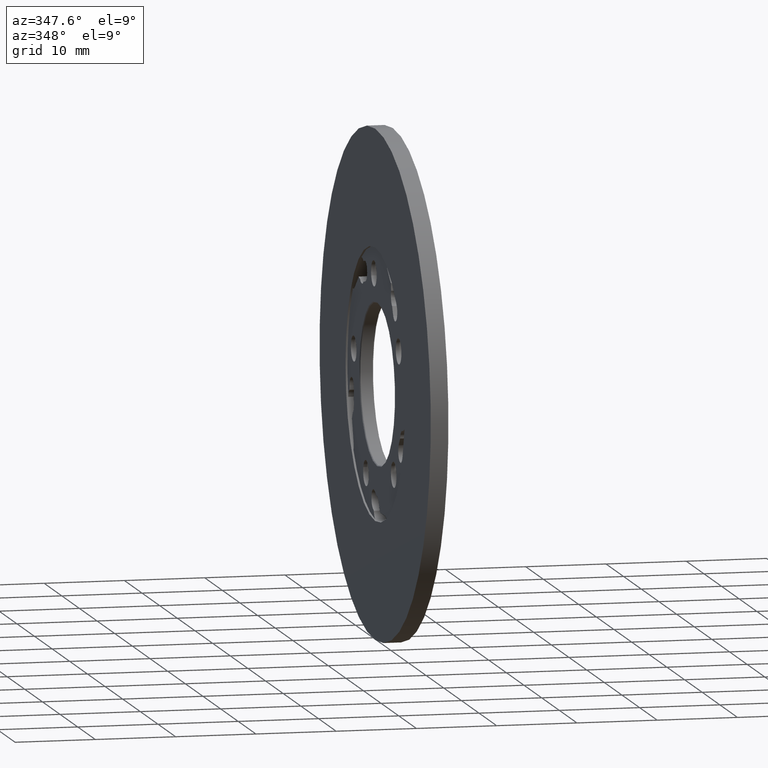
[diagram: clean part render]
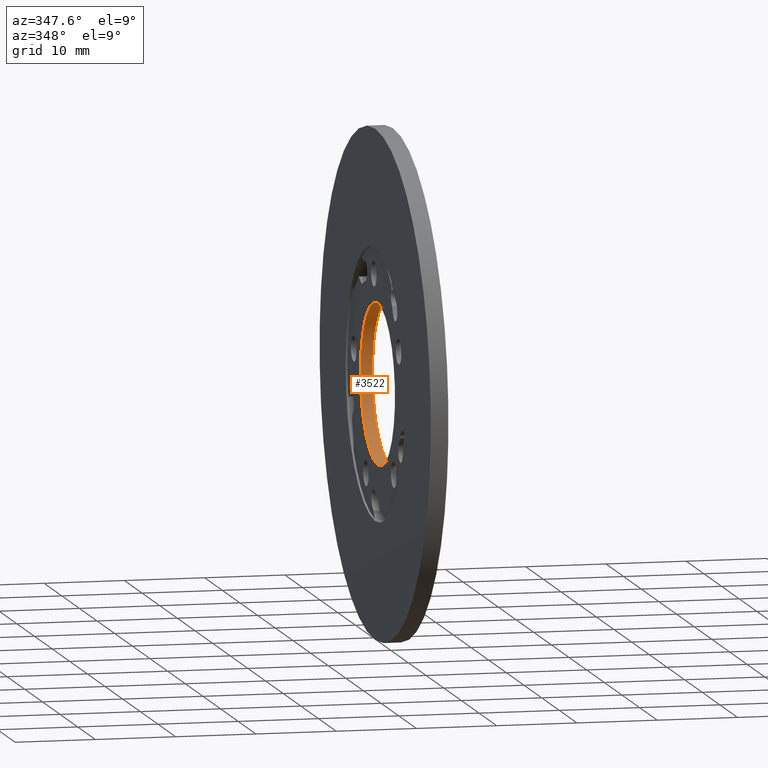
[diagram: same view with one face highlighted and labeled with its STEP entity id]
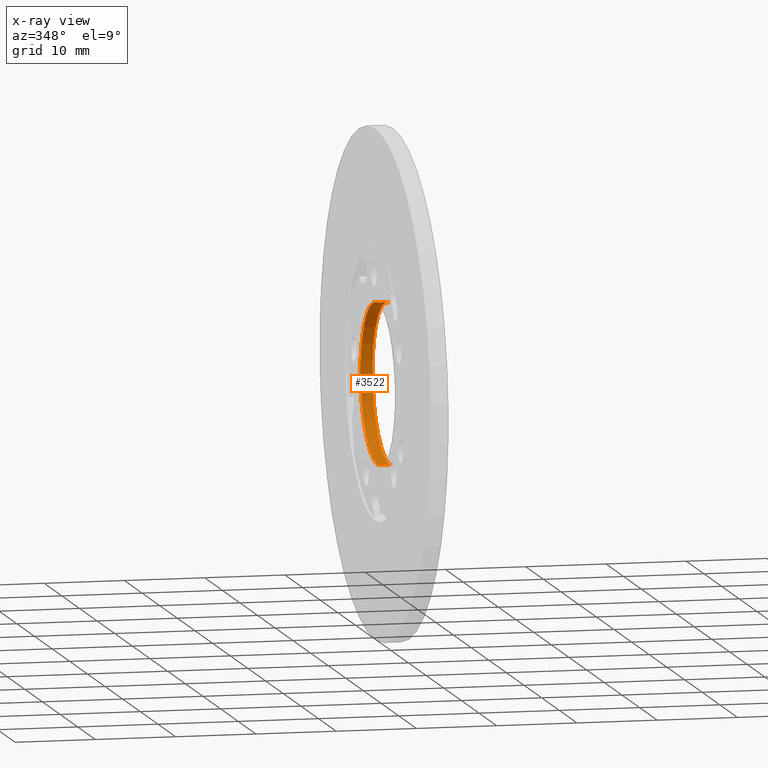
[diagram: x-ray of the same camera — body ghosted, the highlighted face saturated]
A machine part, auxiliary view. The second image highlights one B-rep face of the part: STEP entity #3522.
The next image is the same camera in x-ray: the body ghosted, the highlighted face saturated — about 0% of this face is hidden behind the body in this view.
In plain terms, the highlighted cylindrical surface (partial cylindrical patch) has radius 10 mm, axis along (1, -0, -0).
Its self-contained STEP definition (entity closure, byte-faithful):
#334 = ORIENTED_EDGE ( 'NONE', *, *, #3083, .T. ) ;
#378 = CARTESIAN_POINT ( 'NONE',  ( -1.600000000000021627, 1.224646799147353256E-15, 10.00000000000000000 ) ) ;
#525 = VERTEX_POINT ( 'NONE', #1706 ) ;
#575 = EDGE_LOOP ( 'NONE', ( #2751, #334, #2183, #3745 ) ) ;
#585 = CARTESIAN_POINT ( 'NONE',  ( -29.98427124746191197, 1.224646799147353256E-15, 10.00000000000000000 ) ) ;
#644 = CARTESIAN_POINT ( 'NONE',  ( -0.09999999999999939493, 0.0000000000000000000, -10.00000000000000000 ) ) ;
#761 = CARTESIAN_POINT ( 'NONE',  ( -0.09999999999999939493, 0.0000000000000000000, 0.0000000000000000000 ) ) ;
#817 = AXIS2_PLACEMENT_3D ( 'NONE', #761, #2246, #2863 ) ;
#877 = DIRECTION ( 'NONE',  ( 1.000000000000000000, -0.0000000000000000000, -0.0000000000000000000 ) ) ;
#1022 = AXIS2_PLACEMENT_3D ( 'NONE', #1787, #3591, #2041 ) ;
#1252 = VECTOR ( 'NONE', #1700, 1000.000000000000000 ) ;
#1316 = FACE_OUTER_BOUND ( 'NONE', #575, .T. ) ;
#1700 = DIRECTION ( 'NONE',  ( 1.000000000000000000, -0.0000000000000000000, -0.0000000000000000000 ) ) ;
#1706 = CARTESIAN_POINT ( 'NONE',  ( -1.600000000000021627, 0.0000000000000000000, -10.00000000000000000 ) ) ;
#1708 = CARTESIAN_POINT ( 'NONE',  ( -29.98427124746191197, 0.0000000000000000000, -10.00000000000000000 ) ) ;
#1787 = CARTESIAN_POINT ( 'NONE',  ( -1.600000000000021627, 0.0000000000000000000, 0.0000000000000000000 ) ) ;
#1919 = CARTESIAN_POINT ( 'NONE',  ( -0.09999999999999939493, 1.224646799147353256E-15, 10.00000000000000000 ) ) ;
#2008 = VECTOR ( 'NONE', #877, 1000.000000000000000 ) ;
#2041 = DIRECTION ( 'NONE',  ( 0.0000000000000000000, 0.0000000000000000000, 1.000000000000000000 ) ) ;
#2065 = CIRCLE ( 'NONE', #1022, 10.00000000000000000 ) ;
#2183 = ORIENTED_EDGE ( 'NONE', *, *, #2318, .T. ) ;
#2246 = DIRECTION ( 'NONE',  ( 1.000000000000000000, 0.0000000000000000000, 0.0000000000000000000 ) ) ;
#2275 = VERTEX_POINT ( 'NONE', #378 ) ;
#2304 = LINE ( 'NONE', #585, #2008 ) ;
#2318 = EDGE_CURVE ( 'NONE', #525, #2789, #2390, .T. ) ;
#2390 = LINE ( 'NONE', #1708, #1252 ) ;
#2619 = DIRECTION ( 'NONE',  ( 0.0000000000000000000, 0.0000000000000000000, -1.000000000000000000 ) ) ;
#2651 = DIRECTION ( 'NONE',  ( 1.000000000000000000, -0.0000000000000000000, -0.0000000000000000000 ) ) ;
#2751 = ORIENTED_EDGE ( 'NONE', *, *, #3679, .F. ) ;
#2789 = VERTEX_POINT ( 'NONE', #644 ) ;
#2863 = DIRECTION ( 'NONE',  ( 0.0000000000000000000, 0.0000000000000000000, -1.000000000000000000 ) ) ;
#2893 = EDGE_CURVE ( 'NONE', #2789, #3431, #3883, .T. ) ;
#3083 = EDGE_CURVE ( 'NONE', #2275, #525, #2065, .T. ) ;
#3128 = AXIS2_PLACEMENT_3D ( 'NONE', #3534, #2651, #2619 ) ;
#3316 = CYLINDRICAL_SURFACE ( 'NONE', #3128, 10.00000000000000000 ) ;
#3431 = VERTEX_POINT ( 'NONE', #1919 ) ;
#3522 = ADVANCED_FACE ( 'NONE', ( #1316 ), #3316, .F. ) ;
#3534 = CARTESIAN_POINT ( 'NONE',  ( -29.98427124746191197, 0.0000000000000000000, 0.0000000000000000000 ) ) ;
#3591 = DIRECTION ( 'NONE',  ( -1.000000000000000000, -0.0000000000000000000, -0.0000000000000000000 ) ) ;
#3679 = EDGE_CURVE ( 'NONE', #2275, #3431, #2304, .T. ) ;
#3745 = ORIENTED_EDGE ( 'NONE', *, *, #2893, .T. ) ;
#3883 = CIRCLE ( 'NONE', #817, 10.00000000000000000 ) ;